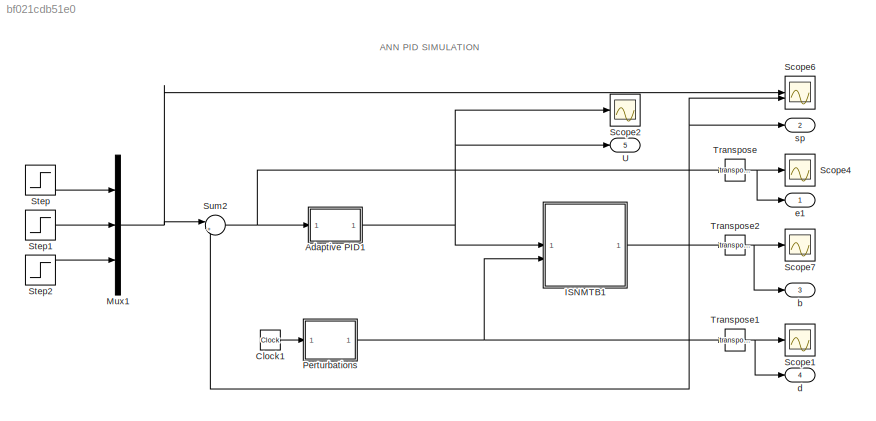
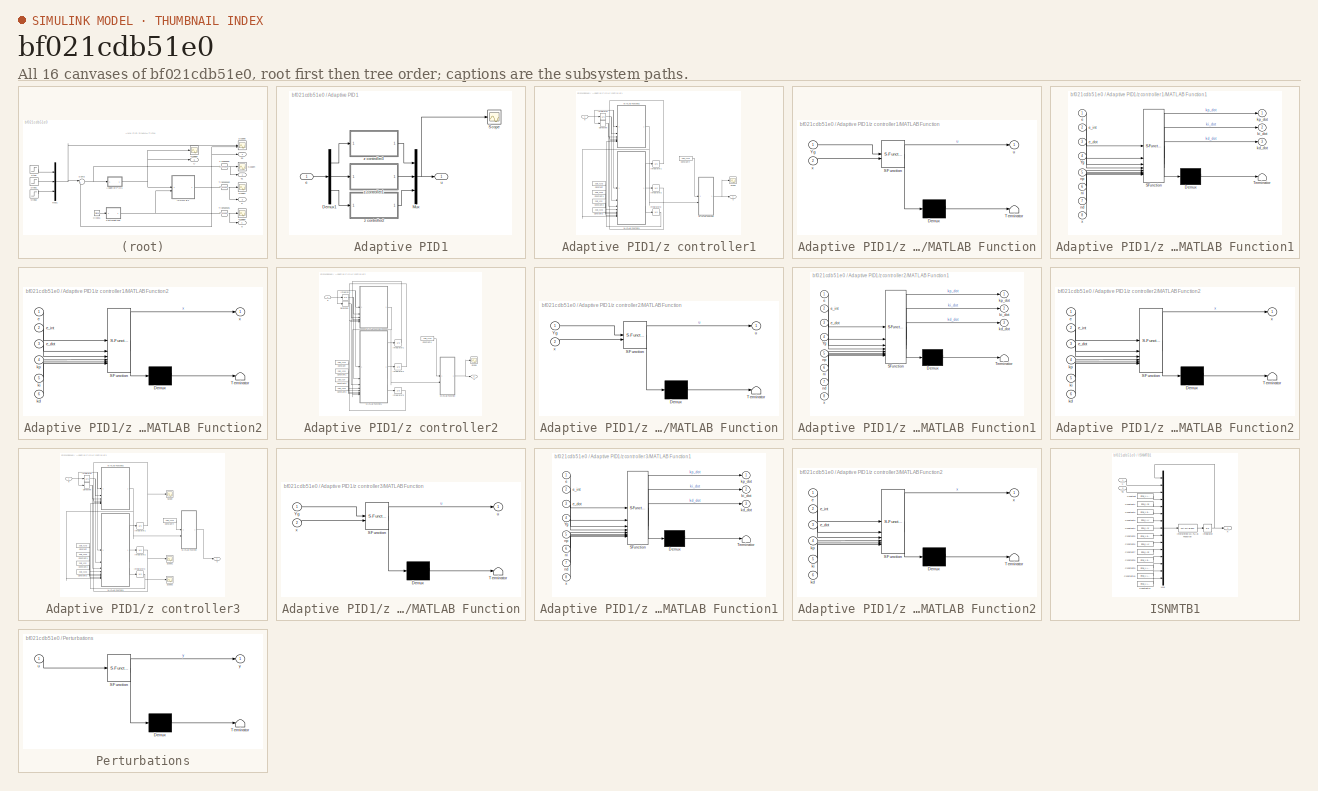
[diagram: thumbnail index - all 16 canvases of the model, root first then tree order]
MODEL slx_bf021cdb51e0
KIND model
CONFIG AbsTol = auto
CONFIG EnableMultiTasking = off
CONFIG FixedStep = auto
CONFIG MaxStep = auto
CONFIG MinStep = auto
CONFIG RelTol = 1e-3
CONFIG SampleTimeConstraint = Unconstrained
CONFIG SolverName = VariableStepAuto
CONFIG StartTime = 0.0
CONFIG StopTime = 1000
BLOCK [SubSystem] Adaptive PID1
BLOCK [Demux] Adaptive PID1/Demux1
  Outputs = 3
BLOCK [Mux] Adaptive PID1/Mux
  DisplayOption = bar
  Inputs = 3
BLOCK [Scope] Adaptive PID1/Scope
  Floating = off
  NumInputPorts = 1
  ScopeSpecificationString = Simulink.scopes.TimeScopeBlockCfg('CurrentConfiguration', extmgr.ConfigurationSet(extmgr.Configuration('Core','General UI',true),extmgr.Configuration('Core','Source UI',true),extmgr.Configuration('Sources','WiredSimulink',true,'DataLoggingVariableName','ScopeData1'),extmgr.Configuration('Visuals','Time Domain',true,'SerializedDisplays',{struct('MinYLimReal','-16353.35172','MaxYLimReal','24039.2613...<+1658ch>
BLOCK [Inport] Adaptive PID1/e
BLOCK [Outport] Adaptive PID1/u
BLOCK [SubSystem] Adaptive PID1/z controller1
BLOCK [Constant] Adaptive PID1/z controller1/Constant
  Value = z.pid_v2.Yg
BLOCK [Constant] Adaptive PID1/z controller1/Constant1
  Value = z.pid_v2.np
BLOCK [Constant] Adaptive PID1/z controller1/Constant2
  Value = z.pid_v2.ni
BLOCK [Constant] Adaptive PID1/z controller1/Constant3
  Value = z.pid_v2.nd
BLOCK [Constant] Adaptive PID1/z controller1/Constant4
  Value = z.pid_v2.Yg
BLOCK [Derivative] Adaptive PID1/z controller1/Derivative
BLOCK [Integrator] Adaptive PID1/z controller1/Integrator
BLOCK [Integrator] Adaptive PID1/z controller1/Integrator1
  InitialCondition = y.PID.Kp
BLOCK [Integrator] Adaptive PID1/z controller1/Integrator2
  InitialCondition = y.PID.Ki
BLOCK [Integrator] Adaptive PID1/z controller1/Integrator3
  InitialCondition = y.PID.Kd
BLOCK [SubSystem] Adaptive PID1/z controller1/MATLAB Function
  ErrorFcn = Stateflow.Translate.translate
  PermitHierarchicalResolution = ExplicitOnly
  SFBlockType = MATLAB Function
  TreatAsAtomicUnit = on
BLOCK [Demux] Adaptive PID1/z controller1/MATLAB Function/ Demux 
  Outputs = 1
BLOCK [S-Function] Adaptive PID1/z controller1/MATLAB Function/ SFunction 
  EnableBusSupport = on
  FunctionName = sf_sfun
  PortCounts = [2 2]
  SFcnIsStateOwnerBlock = off
  SFunctionDeploymentMode = off
  Tag = Stateflow S-Function 2
BLOCK [Terminator] Adaptive PID1/z controller1/MATLAB Function/ Terminator 
BLOCK [Inport] Adaptive PID1/z controller1/MATLAB Function/Yg
BLOCK [Outport] Adaptive PID1/z controller1/MATLAB Function/u
BLOCK [Inport] Adaptive PID1/z controller1/MATLAB Function/x
  Port = 2
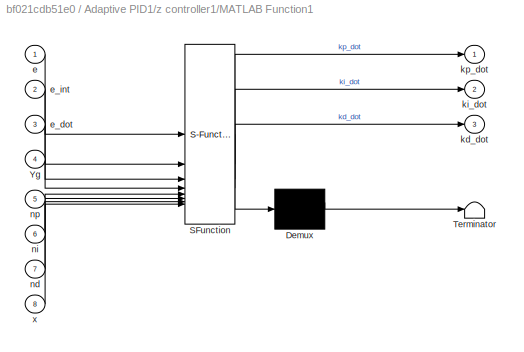
BLOCK [SubSystem] Adaptive PID1/z controller1/MATLAB Function1
  ErrorFcn = Stateflow.Translate.translate
  PermitHierarchicalResolution = ExplicitOnly
  SFBlockType = MATLAB Function
  TreatAsAtomicUnit = on
BLOCK [Demux] Adaptive PID1/z controller1/MATLAB Function1/ Demux 
  Outputs = 1
BLOCK [S-Function] Adaptive PID1/z controller1/MATLAB Function1/ SFunction 
  EnableBusSupport = on
  FunctionName = sf_sfun
  PortCounts = [8 4]
  SFcnIsStateOwnerBlock = off
  SFunctionDeploymentMode = off
  Tag = Stateflow S-Function 4
BLOCK [Terminator] Adaptive PID1/z controller1/MATLAB Function1/ Terminator 
BLOCK [Inport] Adaptive PID1/z controller1/MATLAB Function1/Yg
  Port = 4
BLOCK [Inport] Adaptive PID1/z controller1/MATLAB Function1/e
BLOCK [Inport] Adaptive PID1/z controller1/MATLAB Function1/e_dot
  Port = 3
BLOCK [Inport] Adaptive PID1/z controller1/MATLAB Function1/e_int
  Port = 2
BLOCK [Outport] Adaptive PID1/z controller1/MATLAB Function1/kd_dot
  Port = 3
BLOCK [Outport] Adaptive PID1/z controller1/MATLAB Function1/ki_dot
  Port = 2
BLOCK [Outport] Adaptive PID1/z controller1/MATLAB Function1/kp_dot
BLOCK [Inport] Adaptive PID1/z controller1/MATLAB Function1/nd
  Port = 7
BLOCK [Inport] Adaptive PID1/z controller1/MATLAB Function1/ni
  Port = 6
BLOCK [Inport] Adaptive PID1/z controller1/MATLAB Function1/np
  Port = 5
BLOCK [Inport] Adaptive PID1/z controller1/MATLAB Function1/x
  Port = 8
BLOCK [SubSystem] Adaptive PID1/z controller1/MATLAB Function2
  ErrorFcn = Stateflow.Translate.translate
  PermitHierarchicalResolution = ExplicitOnly
  SFBlockType = MATLAB Function
  TreatAsAtomicUnit = on
BLOCK [Demux] Adaptive PID1/z controller1/MATLAB Function2/ Demux 
  Outputs = 1
BLOCK [S-Function] Adaptive PID1/z controller1/MATLAB Function2/ SFunction 
  EnableBusSupport = on
  FunctionName = sf_sfun
  PortCounts = [6 2]
  SFcnIsStateOwnerBlock = off
  SFunctionDeploymentMode = off
  Tag = Stateflow S-Function 7
BLOCK [Terminator] Adaptive PID1/z controller1/MATLAB Function2/ Terminator 
BLOCK [Inport] Adaptive PID1/z controller1/MATLAB Function2/e
BLOCK [Inport] Adaptive PID1/z controller1/MATLAB Function2/e_dot
  Port = 3
BLOCK [Inport] Adaptive PID1/z controller1/MATLAB Function2/e_int
  Port = 2
BLOCK [Inport] Adaptive PID1/z controller1/MATLAB Function2/kd
  Port = 6
BLOCK [Inport] Adaptive PID1/z controller1/MATLAB Function2/ki
  Port = 5
BLOCK [Inport] Adaptive PID1/z controller1/MATLAB Function2/kp
  Port = 4
BLOCK [Outport] Adaptive PID1/z controller1/MATLAB Function2/x
BLOCK [Scope] Adaptive PID1/z controller1/Scope
  Floating = off
  NumInputPorts = 1
  ScopeSpecificationString = Simulink.scopes.TimeScopeBlockCfg('CurrentConfiguration', extmgr.ConfigurationSet(extmgr.Configuration('Core','General UI',true),extmgr.Configuration('Core','Source UI',true),extmgr.Configuration('Sources','WiredSimulink',true,'DataLoggingVariableName','ScopeData1'),extmgr.Configuration('Visuals','Time Domain',true,'SerializedDisplays',{struct('MinYLimReal','-36551.25','MaxYLimReal','4061.25','YLa...<+1562ch>
BLOCK [Inport] Adaptive PID1/z controller1/e
BLOCK [Outport] Adaptive PID1/z controller1/u
BLOCK [SubSystem] Adaptive PID1/z controller2
BLOCK [Constant] Adaptive PID1/z controller2/Constant
  Value = z.pid_v2.Yg
BLOCK [Constant] Adaptive PID1/z controller2/Constant1
  Value = z.pid_v2.np
BLOCK [Constant] Adaptive PID1/z controller2/Constant2
  Value = z.pid_v2.ni
BLOCK [Constant] Adaptive PID1/z controller2/Constant3
  Value = z.pid_v2.nd
BLOCK [Constant] Adaptive PID1/z controller2/Constant4
  Value = z.pid_v2.Yg
BLOCK [Derivative] Adaptive PID1/z controller2/Derivative
BLOCK [Integrator] Adaptive PID1/z controller2/Integrator
BLOCK [Integrator] Adaptive PID1/z controller2/Integrator1
  InitialCondition = z.PID.Kp
BLOCK [Integrator] Adaptive PID1/z controller2/Integrator2
  InitialCondition = z.PID.Ki
BLOCK [Integrator] Adaptive PID1/z controller2/Integrator3
  InitialCondition = z.PID.Kd
BLOCK [SubSystem] Adaptive PID1/z controller2/MATLAB Function
  ErrorFcn = Stateflow.Translate.translate
  PermitHierarchicalResolution = ExplicitOnly
  SFBlockType = MATLAB Function
  TreatAsAtomicUnit = on
BLOCK [Demux] Adaptive PID1/z controller2/MATLAB Function/ Demux 
  Outputs = 1
BLOCK [S-Function] Adaptive PID1/z controller2/MATLAB Function/ SFunction 
  EnableBusSupport = on
  FunctionName = sf_sfun
  PortCounts = [2 2]
  SFcnIsStateOwnerBlock = off
  SFunctionDeploymentMode = off
  Tag = Stateflow S-Function 8
BLOCK [Terminator] Adaptive PID1/z controller2/MATLAB Function/ Terminator 
BLOCK [Inport] Adaptive PID1/z controller2/MATLAB Function/Yg
BLOCK [Outport] Adaptive PID1/z controller2/MATLAB Function/u
BLOCK [Inport] Adaptive PID1/z controller2/MATLAB Function/x
  Port = 2
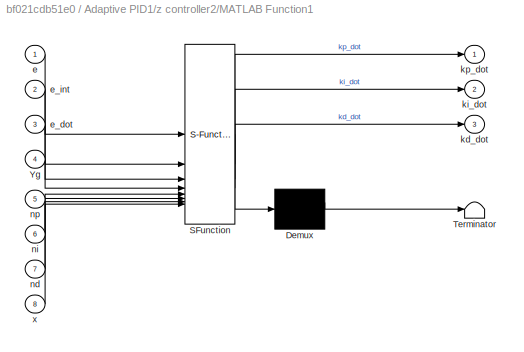
BLOCK [SubSystem] Adaptive PID1/z controller2/MATLAB Function1
  ErrorFcn = Stateflow.Translate.translate
  PermitHierarchicalResolution = ExplicitOnly
  SFBlockType = MATLAB Function
  TreatAsAtomicUnit = on
BLOCK [Demux] Adaptive PID1/z controller2/MATLAB Function1/ Demux 
  Outputs = 1
BLOCK [S-Function] Adaptive PID1/z controller2/MATLAB Function1/ SFunction 
  EnableBusSupport = on
  FunctionName = sf_sfun
  PortCounts = [8 4]
  SFcnIsStateOwnerBlock = off
  SFunctionDeploymentMode = off
  Tag = Stateflow S-Function 10
BLOCK [Terminator] Adaptive PID1/z controller2/MATLAB Function1/ Terminator 
BLOCK [Inport] Adaptive PID1/z controller2/MATLAB Function1/Yg
  Port = 4
BLOCK [Inport] Adaptive PID1/z controller2/MATLAB Function1/e
BLOCK [Inport] Adaptive PID1/z controller2/MATLAB Function1/e_dot
  Port = 3
BLOCK [Inport] Adaptive PID1/z controller2/MATLAB Function1/e_int
  Port = 2
BLOCK [Outport] Adaptive PID1/z controller2/MATLAB Function1/kd_dot
  Port = 3
BLOCK [Outport] Adaptive PID1/z controller2/MATLAB Function1/ki_dot
  Port = 2
BLOCK [Outport] Adaptive PID1/z controller2/MATLAB Function1/kp_dot
BLOCK [Inport] Adaptive PID1/z controller2/MATLAB Function1/nd
  Port = 7
BLOCK [Inport] Adaptive PID1/z controller2/MATLAB Function1/ni
  Port = 6
BLOCK [Inport] Adaptive PID1/z controller2/MATLAB Function1/np
  Port = 5
BLOCK [Inport] Adaptive PID1/z controller2/MATLAB Function1/x
  Port = 8
BLOCK [SubSystem] Adaptive PID1/z controller2/MATLAB Function2
  ErrorFcn = Stateflow.Translate.translate
  PermitHierarchicalResolution = ExplicitOnly
  SFBlockType = MATLAB Function
  TreatAsAtomicUnit = on
BLOCK [Demux] Adaptive PID1/z controller2/MATLAB Function2/ Demux 
  Outputs = 1
BLOCK [S-Function] Adaptive PID1/z controller2/MATLAB Function2/ SFunction 
  EnableBusSupport = on
  FunctionName = sf_sfun
  PortCounts = [6 2]
  SFcnIsStateOwnerBlock = off
  SFunctionDeploymentMode = off
  Tag = Stateflow S-Function 11
BLOCK [Terminator] Adaptive PID1/z controller2/MATLAB Function2/ Terminator 
BLOCK [Inport] Adaptive PID1/z controller2/MATLAB Function2/e
BLOCK [Inport] Adaptive PID1/z controller2/MATLAB Function2/e_dot
  Port = 3
BLOCK [Inport] Adaptive PID1/z controller2/MATLAB Function2/e_int
  Port = 2
BLOCK [Inport] Adaptive PID1/z controller2/MATLAB Function2/kd
  Port = 6
BLOCK [Inport] Adaptive PID1/z controller2/MATLAB Function2/ki
  Port = 5
BLOCK [Inport] Adaptive PID1/z controller2/MATLAB Function2/kp
  Port = 4
BLOCK [Outport] Adaptive PID1/z controller2/MATLAB Function2/x
BLOCK [Scope] Adaptive PID1/z controller2/Scope
  Floating = off
  NumInputPorts = 1
  ScopeSpecificationString = Simulink.scopes.TimeScopeBlockCfg('CurrentConfiguration', extmgr.ConfigurationSet(extmgr.Configuration('Core','General UI',true),extmgr.Configuration('Core','Source UI',true),extmgr.Configuration('Sources','WiredSimulink',true,'DataLoggingVariableName','ScopeData1'),extmgr.Configuration('Visuals','Time Domain',true,'SerializedDisplays',{struct('MinYLimReal','-36551.25','MaxYLimReal','4061.25','YLa...<+1562ch>
BLOCK [Inport] Adaptive PID1/z controller2/e
BLOCK [Outport] Adaptive PID1/z controller2/u
BLOCK [SubSystem] Adaptive PID1/z controller3
BLOCK [Constant] Adaptive PID1/z controller3/Constant
  Value = z.pid_v2.Yg
BLOCK [Constant] Adaptive PID1/z controller3/Constant1
  Value = z.pid_v2.np
BLOCK [Constant] Adaptive PID1/z controller3/Constant2
  Value = z.pid_v2.ni
BLOCK [Constant] Adaptive PID1/z controller3/Constant3
  Value = z.pid_v2.nd
BLOCK [Constant] Adaptive PID1/z controller3/Constant4
  Value = z.pid_v2.Yg
BLOCK [Derivative] Adaptive PID1/z controller3/Derivative
BLOCK [Integrator] Adaptive PID1/z controller3/Integrator
BLOCK [Integrator] Adaptive PID1/z controller3/Integrator1
  InitialCondition = x.PID.Kp
BLOCK [Integrator] Adaptive PID1/z controller3/Integrator2
  InitialCondition = x.PID.Ki
BLOCK [Integrator] Adaptive PID1/z controller3/Integrator3
  InitialCondition = x.PID.Kd
BLOCK [SubSystem] Adaptive PID1/z controller3/MATLAB Function
  ErrorFcn = Stateflow.Translate.translate
  PermitHierarchicalResolution = ExplicitOnly
  SFBlockType = MATLAB Function
  TreatAsAtomicUnit = on
BLOCK [Demux] Adaptive PID1/z controller3/MATLAB Function/ Demux 
  Outputs = 1
BLOCK [S-Function] Adaptive PID1/z controller3/MATLAB Function/ SFunction 
  EnableBusSupport = on
  FunctionName = sf_sfun
  PortCounts = [2 2]
  SFcnIsStateOwnerBlock = off
  SFunctionDeploymentMode = off
  Tag = Stateflow S-Function 5
BLOCK [Terminator] Adaptive PID1/z controller3/MATLAB Function/ Terminator 
BLOCK [Inport] Adaptive PID1/z controller3/MATLAB Function/Yg
BLOCK [Outport] Adaptive PID1/z controller3/MATLAB Function/u
BLOCK [Inport] Adaptive PID1/z controller3/MATLAB Function/x
  Port = 2
BLOCK [SubSystem] Adaptive PID1/z controller3/MATLAB Function1
  ErrorFcn = Stateflow.Translate.translate
  PermitHierarchicalResolution = ExplicitOnly
  SFBlockType = MATLAB Function
  TreatAsAtomicUnit = on
BLOCK [Demux] Adaptive PID1/z controller3/MATLAB Function1/ Demux 
  Outputs = 1
BLOCK [S-Function] Adaptive PID1/z controller3/MATLAB Function1/ SFunction 
  EnableBusSupport = on
  FunctionName = sf_sfun
  PortCounts = [8 4]
  SFcnIsStateOwnerBlock = off
  SFunctionDeploymentMode = off
  Tag = Stateflow S-Function 6
BLOCK [Terminator] Adaptive PID1/z controller3/MATLAB Function1/ Terminator 
BLOCK [Inport] Adaptive PID1/z controller3/MATLAB Function1/Yg
  Port = 4
BLOCK [Inport] Adaptive PID1/z controller3/MATLAB Function1/e
BLOCK [Inport] Adaptive PID1/z controller3/MATLAB Function1/e_dot
  Port = 3
BLOCK [Inport] Adaptive PID1/z controller3/MATLAB Function1/e_int
  Port = 2
BLOCK [Outport] Adaptive PID1/z controller3/MATLAB Function1/kd_dot
  Port = 3
BLOCK [Outport] Adaptive PID1/z controller3/MATLAB Function1/ki_dot
  Port = 2
BLOCK [Outport] Adaptive PID1/z controller3/MATLAB Function1/kp_dot
BLOCK [Inport] Adaptive PID1/z controller3/MATLAB Function1/nd
  Port = 7
BLOCK [Inport] Adaptive PID1/z controller3/MATLAB Function1/ni
  Port = 6
BLOCK [Inport] Adaptive PID1/z controller3/MATLAB Function1/np
  Port = 5
BLOCK [Inport] Adaptive PID1/z controller3/MATLAB Function1/x
  Port = 8
BLOCK [SubSystem] Adaptive PID1/z controller3/MATLAB Function2
  ErrorFcn = Stateflow.Translate.translate
  PermitHierarchicalResolution = ExplicitOnly
  SFBlockType = MATLAB Function
  TreatAsAtomicUnit = on
BLOCK [Demux] Adaptive PID1/z controller3/MATLAB Function2/ Demux 
  Outputs = 1
BLOCK [S-Function] Adaptive PID1/z controller3/MATLAB Function2/ SFunction 
  EnableBusSupport = on
  FunctionName = sf_sfun
  PortCounts = [6 2]
  SFcnIsStateOwnerBlock = off
  SFunctionDeploymentMode = off
  Tag = Stateflow S-Function 9
BLOCK [Terminator] Adaptive PID1/z controller3/MATLAB Function2/ Terminator 
BLOCK [Inport] Adaptive PID1/z controller3/MATLAB Function2/e
BLOCK [Inport] Adaptive PID1/z controller3/MATLAB Function2/e_dot
  Port = 3
BLOCK [Inport] Adaptive PID1/z controller3/MATLAB Function2/e_int
  Port = 2
BLOCK [Inport] Adaptive PID1/z controller3/MATLAB Function2/kd
  Port = 6
BLOCK [Inport] Adaptive PID1/z controller3/MATLAB Function2/ki
  Port = 5
BLOCK [Inport] Adaptive PID1/z controller3/MATLAB Function2/kp
  Port = 4
BLOCK [Outport] Adaptive PID1/z controller3/MATLAB Function2/x
BLOCK [Scope] Adaptive PID1/z controller3/Scope
  Floating = off
  NumInputPorts = 1
  ScopeSpecificationString = Simulink.scopes.TimeScopeBlockCfg('CurrentConfiguration', extmgr.ConfigurationSet(extmgr.Configuration('Core','General UI',true),extmgr.Configuration('Core','Source UI',true),extmgr.Configuration('Sources','WiredSimulink',true,'DataLoggingVariableName','ScopeData1'),extmgr.Configuration('Visuals','Time Domain',true,'SerializedDisplays',{struct('MinYLimReal','0.0004202399517','MaxYLimReal','0.00042...<+1590ch>
BLOCK [Scope] Adaptive PID1/z controller3/Scope1
  Floating = off
  NumInputPorts = 1
  ScopeSpecificationString = Simulink.scopes.TimeScopeBlockCfg('CurrentConfiguration', extmgr.ConfigurationSet(extmgr.Configuration('Core','General UI',true),extmgr.Configuration('Core','Source UI',true),extmgr.Configuration('Sources','WiredSimulink',true,'DataLoggingVariableName','ScopeData1'),extmgr.Configuration('Visuals','Time Domain',true,'SerializedDisplays',{struct('MinYLimReal','1.2979','MaxYLimReal','3.2979','YLabelR...<+1522ch>
BLOCK [Scope] Adaptive PID1/z controller3/Scope2
  Floating = off
  NumInputPorts = 1
  ScopeSpecificationString = Simulink.scopes.TimeScopeBlockCfg('CurrentConfiguration', extmgr.ConfigurationSet(extmgr.Configuration('Core','General UI',true),extmgr.Configuration('Core','Source UI',true),extmgr.Configuration('Sources','WiredSimulink',true,'DataLoggingVariableName','ScopeData2'),extmgr.Configuration('Visuals','Time Domain',true,'SerializedDisplays',{struct('MinYLimReal','-0.00000011','MaxYLimReal','0.00000001'...<+1560ch>
BLOCK [Inport] Adaptive PID1/z controller3/e
BLOCK [Outport] Adaptive PID1/z controller3/u
BLOCK [Clock] Clock1
  Decimation = 1000
BLOCK [SubSystem] ISNMTB1
BLOCK [Constant] ISNMTB1/Constant
  Value = initial_1.Lx
BLOCK [Constant] ISNMTB1/Constant1
  Value = initial_1.Rx
BLOCK [Constant] ISNMTB1/Constant10
  Value = initial_1.Lxz
BLOCK [Constant] ISNMTB1/Constant11
  Value = initial_1.Lzy
BLOCK [Constant] ISNMTB1/Constant2
  Value = initial_1.B_x
BLOCK [Constant] ISNMTB1/Constant3
  Value = initial_1.Ly
BLOCK [Constant] ISNMTB1/Constant4
  Value = initial_1.Ry
BLOCK [Constant] ISNMTB1/Constant5
  Value = initial_1.B_y
BLOCK [Constant] ISNMTB1/Constant6
  Value = initial_1.Lz
BLOCK [Constant] ISNMTB1/Constant7
  Value = initial_1.Rz
BLOCK [Constant] ISNMTB1/Constant8
  Value = initial_1.B_z
BLOCK [Constant] ISNMTB1/Constant9
  Value = initial_1.Lxy
BLOCK [Integrator] ISNMTB1/Integrator
  InitialCondition = [3.249E4, -2.265E4, 3.655E4]
BLOCK [MATLABFcn] ISNMTB1/Interpreted MATLAB Function
  MATLABFcn = is501nmtbModel_simu
BLOCK [Mux] ISNMTB1/Mux
  DisplayOption = bar
  Inputs = 15
BLOCK [Inport] ISNMTB1/Td
  Port = 2
BLOCK [Outport] ISNMTB1/X
BLOCK [Inport] ISNMTB1/u
BLOCK [Mux] Mux1
  DisplayOption = bar
  Inputs = 3
BLOCK [SubSystem] Perturbations
  ErrorFcn = Stateflow.Translate.translate
  PermitHierarchicalResolution = ExplicitOnly
  SFBlockType = MATLAB Function
  TreatAsAtomicUnit = on
BLOCK [Demux] Perturbations/ Demux 
  Outputs = 1
BLOCK [S-Function] Perturbations/ SFunction 
  EnableBusSupport = on
  FunctionName = sf_sfun
  PortCounts = [1 2]
  SFcnIsStateOwnerBlock = off
  SFunctionDeploymentMode = off
  Tag = Stateflow S-Function 1
BLOCK [Terminator] Perturbations/ Terminator 
BLOCK [Inport] Perturbations/u
BLOCK [Outport] Perturbations/y
BLOCK [Scope] Scope1
  Floating = off
  NumInputPorts = 1
  ScopeSpecificationString = Simulink.scopes.TimeScopeBlockCfg('CurrentConfiguration', extmgr.ConfigurationSet(extmgr.Configuration('Core','General UI',true),extmgr.Configuration('Core','Source UI',true),extmgr.Configuration('Sources','WiredSimulink',true,'DataLoggingVariableName','ScopeData1'),extmgr.Configuration('Visuals','Time Domain',true,'SerializedDisplays',{struct('MinYLimReal','-30050.00095','MaxYLimReal','43950.0007...<+1659ch>
BLOCK [Scope] Scope2
  Floating = off
  NumInputPorts = 1
  ScopeSpecificationString = Simulink.scopes.TimeScopeBlockCfg('CurrentConfiguration', extmgr.ConfigurationSet(extmgr.Configuration('Core','General UI',true),extmgr.Configuration('Core','Source UI',true),extmgr.Configuration('Sources','WiredSimulink',true,'DataLoggingVariableName','ScopeData1'),extmgr.Configuration('Visuals','Time Domain',true,'SerializedDisplays',{struct('MinYLimReal','-24.18445','MaxYLimReal','17.66007','YL...<+1644ch>
BLOCK [Scope] Scope4
  Floating = off
  NumInputPorts = 1
  ScopeSpecificationString = Simulink.scopes.TimeScopeBlockCfg('CurrentConfiguration', extmgr.ConfigurationSet(extmgr.Configuration('Core','General UI',true),extmgr.Configuration('Core','Source UI',true),extmgr.Configuration('Sources','WiredSimulink',true,'DataLoggingVariableName','ScopeData1'),extmgr.Configuration('Visuals','Time Domain',true,'SerializedDisplays',{struct('MinYLimReal','-0.00026','MaxYLimReal','0.00074','YLab...<+1560ch>
BLOCK [Scope] Scope6
  Floating = off
  NumInputPorts = 2
  ScopeSpecificationString = Simulink.scopes.TimeScopeBlockCfg('CurrentConfiguration', extmgr.ConfigurationSet(extmgr.Configuration('Core','General UI',true),extmgr.Configuration('Core','Source UI',true),extmgr.Configuration('Sources','WiredSimulink',true,'DataLoggingVariableName','ScopeData3'),extmgr.Configuration('Visuals','Time Domain',true,'SerializedDisplays',{struct('MinYLimReal','0.999955','MaxYLimReal','1.000047','YLa...<+1720ch>
BLOCK [Scope] Scope7
  Floating = off
  NumInputPorts = 1
  ScopeSpecificationString = Simulink.scopes.TimeScopeBlockCfg('CurrentConfiguration', extmgr.ConfigurationSet(extmgr.Configuration('Core','General UI',true),extmgr.Configuration('Core','Source UI',true),extmgr.Configuration('Sources','WiredSimulink',true,'DataLoggingVariableName','ScopeData4'),extmgr.Configuration('Visuals','Time Domain',true,'SerializedDisplays',{struct('MinYLimReal','-30050.36314','MaxYLimReal','43950.2816...<+1659ch>
BLOCK [Step] Step
  SampleTime = 0
  Time = 0.1
BLOCK [Step] Step1
  SampleTime = 0
  Time = 0.1
BLOCK [Step] Step2
  SampleTime = 0
  Time = 0.1
BLOCK [Sum] Sum2
  Inputs = |+-
BLOCK [Math] Transpose
  Operator = transpose
BLOCK [Math] Transpose1
  Operator = transpose
BLOCK [Math] Transpose2
  Operator = transpose
BLOCK [Outport] U
  Port = 5
BLOCK [Outport] b
  Port = 3
BLOCK [Outport] d
  Port = 4
BLOCK [Outport] e1
BLOCK [Outport] sp
  Port = 2
ANNOTATION (root): ANN PID SIMULATION
LINE Adaptive PID1/Demux1:1 -> Adaptive PID1/z controller3:1
LINE Adaptive PID1/Demux1:2 -> Adaptive PID1/z controller1:1
LINE Adaptive PID1/Demux1:3 -> Adaptive PID1/z controller2:1
NET Adaptive PID1/Mux:1 -> Adaptive PID1/Scope:1, Adaptive PID1/u:1
LINE Adaptive PID1/e:1 -> Adaptive PID1/Demux1:1
LINE Adaptive PID1/z controller1/Constant1:1 -> Adaptive PID1/z controller1/MATLAB Function1:5
LINE Adaptive PID1/z controller1/Constant2:1 -> Adaptive PID1/z controller1/MATLAB Function1:6
LINE Adaptive PID1/z controller1/Constant3:1 -> Adaptive PID1/z controller1/MATLAB Function1:7
LINE Adaptive PID1/z controller1/Constant4:1 -> Adaptive PID1/z controller1/MATLAB Function:1
LINE Adaptive PID1/z controller1/Constant:1 -> Adaptive PID1/z controller1/MATLAB Function1:4
NET Adaptive PID1/z controller1/Derivative:1 -> Adaptive PID1/z controller1/MATLAB Function1:3, Adaptive PID1/z controller1/MATLAB Function2:3
LINE Adaptive PID1/z controller1/Integrator1:1 -> Adaptive PID1/z controller1/MATLAB Function2:4
LINE Adaptive PID1/z controller1/Integrator2:1 -> Adaptive PID1/z controller1/MATLAB Function2:5
LINE Adaptive PID1/z controller1/Integrator3:1 -> Adaptive PID1/z controller1/MATLAB Function2:6
NET Adaptive PID1/z controller1/Integrator:1 -> Adaptive PID1/z controller1/MATLAB Function1:2, Adaptive PID1/z controller1/MATLAB Function2:2
LINE Adaptive PID1/z controller1/MATLAB Function1:1 -> Adaptive PID1/z controller1/Integrator1:1
LINE Adaptive PID1/z controller1/MATLAB Function1:2 -> Adaptive PID1/z controller1/Integrator2:1
LINE Adaptive PID1/z controller1/MATLAB Function1:3 -> Adaptive PID1/z controller1/Integrator3:1
NET Adaptive PID1/z controller1/MATLAB Function2:1 -> Adaptive PID1/z controller1/MATLAB Function1:8, Adaptive PID1/z controller1/MATLAB Function:2
NET Adaptive PID1/z controller1/MATLAB Function:1 -> Adaptive PID1/z controller1/Scope:1, Adaptive PID1/z controller1/u:1
NET Adaptive PID1/z controller1/e:1 -> Adaptive PID1/z controller1/Derivative:1, Adaptive PID1/z controller1/Integrator:1, Adaptive PID1/z controller1/MATLAB Function1:1, Adaptive PID1/z controller1/MATLAB Function2:1
LINE Adaptive PID1/z controller1:1 -> Adaptive PID1/Mux:2
LINE Adaptive PID1/z controller2/Constant1:1 -> Adaptive PID1/z controller2/MATLAB Function1:5
LINE Adaptive PID1/z controller2/Constant2:1 -> Adaptive PID1/z controller2/MATLAB Function1:6
LINE Adaptive PID1/z controller2/Constant3:1 -> Adaptive PID1/z controller2/MATLAB Function1:7
LINE Adaptive PID1/z controller2/Constant4:1 -> Adaptive PID1/z controller2/MATLAB Function:1
LINE Adaptive PID1/z controller2/Constant:1 -> Adaptive PID1/z controller2/MATLAB Function1:4
NET Adaptive PID1/z controller2/Derivative:1 -> Adaptive PID1/z controller2/MATLAB Function1:3, Adaptive PID1/z controller2/MATLAB Function2:3
LINE Adaptive PID1/z controller2/Integrator1:1 -> Adaptive PID1/z controller2/MATLAB Function2:4
LINE Adaptive PID1/z controller2/Integrator2:1 -> Adaptive PID1/z controller2/MATLAB Function2:5
LINE Adaptive PID1/z controller2/Integrator3:1 -> Adaptive PID1/z controller2/MATLAB Function2:6
NET Adaptive PID1/z controller2/Integrator:1 -> Adaptive PID1/z controller2/MATLAB Function1:2, Adaptive PID1/z controller2/MATLAB Function2:2
LINE Adaptive PID1/z controller2/MATLAB Function1:1 -> Adaptive PID1/z controller2/Integrator1:1
LINE Adaptive PID1/z controller2/MATLAB Function1:2 -> Adaptive PID1/z controller2/Integrator2:1
LINE Adaptive PID1/z controller2/MATLAB Function1:3 -> Adaptive PID1/z controller2/Integrator3:1
NET Adaptive PID1/z controller2/MATLAB Function2:1 -> Adaptive PID1/z controller2/MATLAB Function1:8, Adaptive PID1/z controller2/MATLAB Function:2
NET Adaptive PID1/z controller2/MATLAB Function:1 -> Adaptive PID1/z controller2/Scope:1, Adaptive PID1/z controller2/u:1
NET Adaptive PID1/z controller2/e:1 -> Adaptive PID1/z controller2/Derivative:1, Adaptive PID1/z controller2/Integrator:1, Adaptive PID1/z controller2/MATLAB Function1:1, Adaptive PID1/z controller2/MATLAB Function2:1
LINE Adaptive PID1/z controller2:1 -> Adaptive PID1/Mux:3
LINE Adaptive PID1/z controller3/Constant1:1 -> Adaptive PID1/z controller3/MATLAB Function1:5
LINE Adaptive PID1/z controller3/Constant2:1 -> Adaptive PID1/z controller3/MATLAB Function1:6
LINE Adaptive PID1/z controller3/Constant3:1 -> Adaptive PID1/z controller3/MATLAB Function1:7
LINE Adaptive PID1/z controller3/Constant4:1 -> Adaptive PID1/z controller3/MATLAB Function:1
LINE Adaptive PID1/z controller3/Constant:1 -> Adaptive PID1/z controller3/MATLAB Function1:4
NET Adaptive PID1/z controller3/Derivative:1 -> Adaptive PID1/z controller3/MATLAB Function1:3, Adaptive PID1/z controller3/MATLAB Function2:3
NET Adaptive PID1/z controller3/Integrator1:1 -> Adaptive PID1/z controller3/MATLAB Function2:4, Adaptive PID1/z controller3/Scope:1
NET Adaptive PID1/z controller3/Integrator2:1 -> Adaptive PID1/z controller3/MATLAB Function2:5, Adaptive PID1/z controller3/Scope1:1
NET Adaptive PID1/z controller3/Integrator3:1 -> Adaptive PID1/z controller3/MATLAB Function2:6, Adaptive PID1/z controller3/Scope2:1
NET Adaptive PID1/z controller3/Integrator:1 -> Adaptive PID1/z controller3/MATLAB Function1:2, Adaptive PID1/z controller3/MATLAB Function2:2
LINE Adaptive PID1/z controller3/MATLAB Function1:1 -> Adaptive PID1/z controller3/Integrator1:1
LINE Adaptive PID1/z controller3/MATLAB Function1:2 -> Adaptive PID1/z controller3/Integrator2:1
LINE Adaptive PID1/z controller3/MATLAB Function1:3 -> Adaptive PID1/z controller3/Integrator3:1
NET Adaptive PID1/z controller3/MATLAB Function2:1 -> Adaptive PID1/z controller3/MATLAB Function1:8, Adaptive PID1/z controller3/MATLAB Function:2
LINE Adaptive PID1/z controller3/MATLAB Function:1 -> Adaptive PID1/z controller3/u:1
NET Adaptive PID1/z controller3/e:1 -> Adaptive PID1/z controller3/Derivative:1, Adaptive PID1/z controller3/Integrator:1, Adaptive PID1/z controller3/MATLAB Function1:1, Adaptive PID1/z controller3/MATLAB Function2:1
LINE Adaptive PID1/z controller3:1 -> Adaptive PID1/Mux:1
NET Adaptive PID1:1 -> ISNMTB1:1, Scope2:1, U:1
LINE Clock1:1 -> Perturbations:1
LINE ISNMTB1/Constant10:1 -> ISNMTB1/Mux:14
LINE ISNMTB1/Constant11:1 -> ISNMTB1/Mux:15
LINE ISNMTB1/Constant1:1 -> ISNMTB1/Mux:5
LINE ISNMTB1/Constant2:1 -> ISNMTB1/Mux:6
LINE ISNMTB1/Constant3:1 -> ISNMTB1/Mux:7
LINE ISNMTB1/Constant4:1 -> ISNMTB1/Mux:8
LINE ISNMTB1/Constant5:1 -> ISNMTB1/Mux:9
LINE ISNMTB1/Constant6:1 -> ISNMTB1/Mux:10
LINE ISNMTB1/Constant7:1 -> ISNMTB1/Mux:11
LINE ISNMTB1/Constant8:1 -> ISNMTB1/Mux:12
LINE ISNMTB1/Constant9:1 -> ISNMTB1/Mux:13
LINE ISNMTB1/Constant:1 -> ISNMTB1/Mux:4
NET ISNMTB1/Integrator:1 -> ISNMTB1/Mux:1, ISNMTB1/X:1
LINE ISNMTB1/Interpreted MATLAB Function:1 -> ISNMTB1/Integrator:1
LINE ISNMTB1/Mux:1 -> ISNMTB1/Interpreted MATLAB Function:1
LINE ISNMTB1/Td:1 -> ISNMTB1/Mux:3
LINE ISNMTB1/u:1 -> ISNMTB1/Mux:2
NET ISNMTB1:1 -> Scope6:2, Sum2:2, Transpose2:1, sp:1
NET Mux1:1 -> Scope6:1, Sum2:1
NET Perturbations:1 -> ISNMTB1:2, Transpose1:1
LINE Step1:1 -> Mux1:2
LINE Step2:1 -> Mux1:3
LINE Step:1 -> Mux1:1
NET Sum2:1 -> Adaptive PID1:1, Transpose:1
NET Transpose1:1 -> Scope1:1, d:1
NET Transpose2:1 -> Scope7:1, b:1
NET Transpose:1 -> Scope4:1, e1:1
note: NET lines group one-source signal fan-out (src -> all destinations, sorted); 1:1 wires keep LINE
CHART Adaptive PID1/z controller2/MATLAB Function1 states=1 transitions=1
  STATE_LABEL 'eML_blk_kernel()'
  STATE_LABEL 'SCRIPT:\nfunction [kp_dot,ki_dot,kd_dot] = neuronalPID(e,e_int,e_dot,Yg,np,ni,nd,x)\n%e = entr(1);\n%e_int = entr(2);\n%e_dot = entr(3);\n%x =  entr(4);\n%Yg =  entr(5);\n%np =  entr(6);\n%ni =  entr(7);\n%nd =  entr(8);\n%kp_old\n%ki_old\n%kd_old \n\nkp_dot = np*e*e*sigmoid_dot(x, Yg);\nki_dot = ni*e*e_int*sigmoid_dot(x, Yg);\nkd_dot = nd*e*e_dot*sigmoid_dot(x, Yg);\nend\n\nfunction f_dot = sigmoid_dot(x, Yg)\n    f...<+42ch>'  <repeated x3 — deduplicated; at blocks: MATLAB Function1>
CHART Adaptive PID1/z controller2/MATLAB Function2 states=1 transitions=1
  STATE_LABEL 'eML_blk_kernel()'
  STATE_LABEL 'SCRIPT:\nfunction x = myPidFun(e,e_int,e_dot,kp,ki,kd)\n   x = kp*e+ki*e_int+kd*e_dot;\nend'
CHART Perturbations states=1 transitions=1
  STATE_LABEL 'eML_blk_kernel()'
  STATE_LABEL 'SCRIPT:\nfunction y = fcn(u)\ny= [2.522*sin(2*pi*4.788E-3*u)+3.249E04;\n   -5.174*sin(2*pi*7.481E-3*u)-2.265E04;\n    3.359*sin(2*pi*8.378E-3*u)+3.655E04];\nend'
CHART Adaptive PID1/z controller1/MATLAB Function states=1 transitions=1
  STATE_LABEL 'eML_blk_kernel()'
  STATE_LABEL 'SCRIPT:\nfunction u = fcn(Yg, x)\n    u=sigmoid(x,Yg);\nend\n\nfunction f = sigmoid(x,Yg)\n    f = 2/Yg * (1-exp(-x*Yg))/(1+exp(-x*Yg));\nend'
CHART Adaptive PID1/z controller1/MATLAB Function1 states=1 transitions=1
  STATE_LABEL 'eML_blk_kernel()'
CHART Adaptive PID1/z controller3/MATLAB Function states=1 transitions=1
  STATE_LABEL 'eML_blk_kernel()'
  STATE_LABEL 'SCRIPT:\nfunction u = fcn(Yg, x)\n    u=sigmoid(x,Yg);\nend\n\nfunction f = sigmoid(x,Yg)\n    f = 2/Yg * (1-exp(-x*Yg))/(1+exp(-x*Yg));\nend'
CHART Adaptive PID1/z controller3/MATLAB Function1 states=1 transitions=1
  STATE_LABEL 'eML_blk_kernel()'
CHART Adaptive PID1/z controller1/MATLAB Function2 states=1 transitions=1
  STATE_LABEL 'eML_blk_kernel()'
  STATE_LABEL 'SCRIPT:\nfunction x = myPidFun(e,e_int,e_dot,kp,ki,kd)\n   x = kp*e+ki*e_int+kd*e_dot;\nend'
CHART Adaptive PID1/z controller2/MATLAB Function states=1 transitions=1
  STATE_LABEL 'eML_blk_kernel()'
  STATE_LABEL 'SCRIPT:\nfunction u = fcn(Yg, x)\n    u=sigmoid(x,Yg);\nend\n\nfunction f = sigmoid(x,Yg)\n    f = 2/Yg * (1-exp(-x*Yg))/(1+exp(-x*Yg));\nend'
CHART Adaptive PID1/z controller3/MATLAB Function2 states=1 transitions=1
  STATE_LABEL 'eML_blk_kernel()'
  STATE_LABEL 'SCRIPT:\nfunction x = myPidFun(e,e_int,e_dot,kp,ki,kd)\n   x = kp*e+ki*e_int+kd*e_dot;\nend'
CHART  states=0 transitions=0
CHART  states=0 transitions=0
CHART  states=0 transitions=0
CHART  states=0 transitions=0
CHART  states=0 transitions=0
CHART  states=0 transitions=0
CHART  states=0 transitions=0
CHART  states=0 transitions=0
CHART  states=0 transitions=0
CHART  states=0 transitions=0
